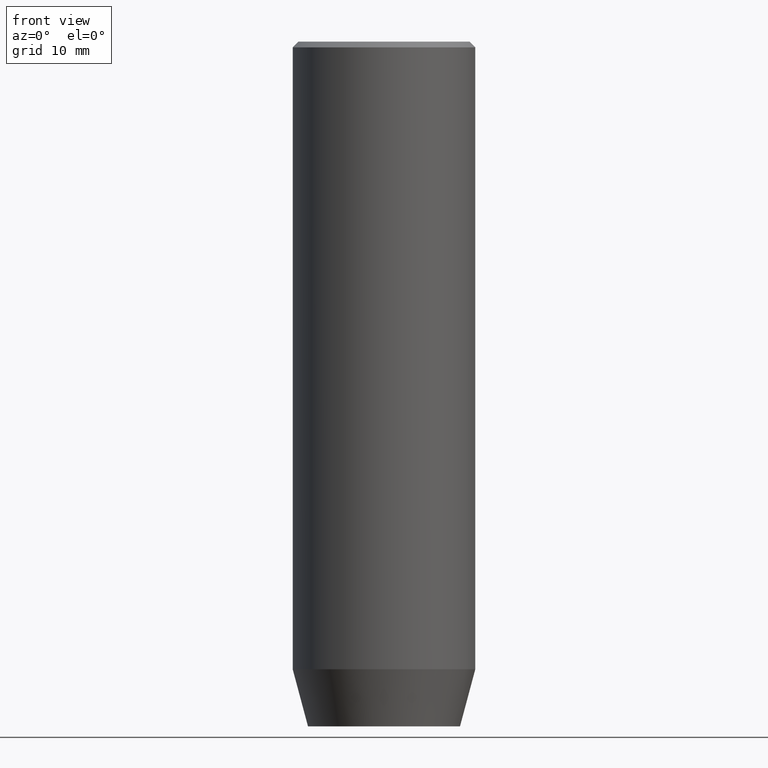
[diagram: clean part render]
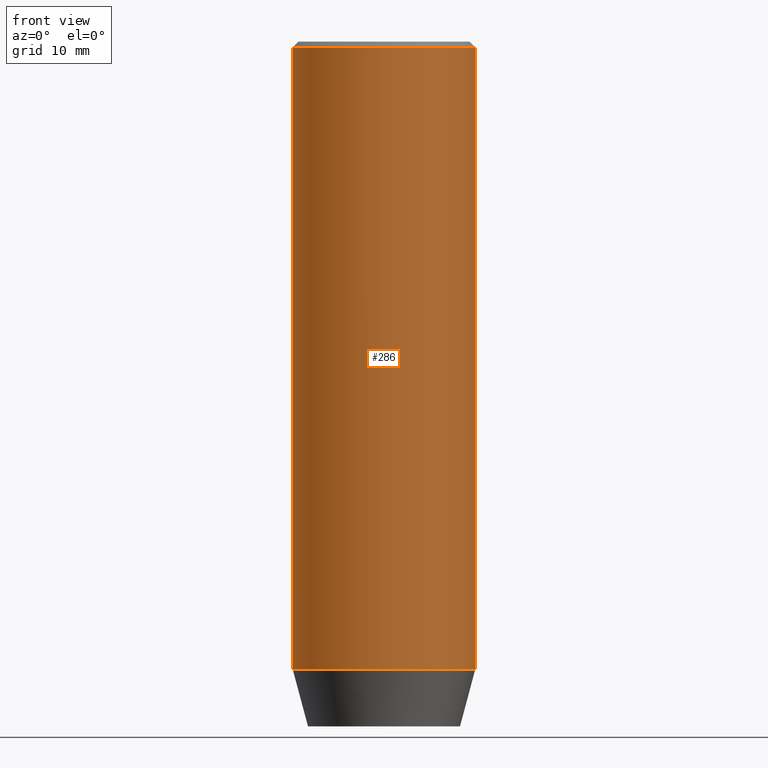
[diagram: same view with one face highlighted and labeled with its STEP entity id]
A machine part, front view. The second image highlights one B-rep face of the part: STEP entity #286.
In plain terms, the highlighted cylindrical surface (partial cylindrical patch) has radius 8 mm, axis along (-0, -0, 1).
Its self-contained STEP definition (entity closure, byte-faithful):
#21 = EDGE_CURVE ( 'NONE', #264, #63, #364, .T. ) ;
#58 = EDGE_CURVE ( 'NONE', #139, #264, #296, .T. ) ;
#63 = VERTEX_POINT ( 'NONE', #337 ) ;
#86 = CARTESIAN_POINT ( 'NONE',  ( -8.000000000000000000, 9.797174393178825657E-16, 0.000000000000000000 ) ) ;
#91 = DIRECTION ( 'NONE',  ( -0.000000000000000000, -0.000000000000000000, 1.000000000000000000 ) ) ;
#120 = ORIENTED_EDGE ( 'NONE', *, *, #21, .T. ) ;
#139 = VERTEX_POINT ( 'NONE', #397 ) ;
#156 = ORIENTED_EDGE ( 'NONE', *, *, #58, .T. ) ;
#180 = EDGE_LOOP ( 'NONE', ( #287, #470, #156, #120 ) ) ;
#209 = DIRECTION ( 'NONE',  ( 1.000000000000000000, 0.000000000000000000, 0.000000000000000000 ) ) ;
#220 = DIRECTION ( 'NONE',  ( 1.000000000000000000, 0.000000000000000000, 0.000000000000000000 ) ) ;
#221 = AXIS2_PLACEMENT_3D ( 'NONE', #436, #385, #209 ) ;
#251 = CARTESIAN_POINT ( 'NONE',  ( -8.000000000000000000, 9.797174393178825657E-16, -55.00000000000000000 ) ) ;
#263 = DIRECTION ( 'NONE',  ( -0.000000000000000000, -0.000000000000000000, 1.000000000000000000 ) ) ;
#264 = VERTEX_POINT ( 'NONE', #438 ) ;
#282 = CARTESIAN_POINT ( 'NONE',  ( 0.000000000000000000, 0.000000000000000000, -55.00000000000000000 ) ) ;
#286 = ADVANCED_FACE ( 'NONE', ( #483 ), #395, .T. ) ;
#287 = ORIENTED_EDGE ( 'NONE', *, *, #502, .F. ) ;
#296 = LINE ( 'NONE', #466, #443 ) ;
#317 = LINE ( 'NONE', #86, #319 ) ;
#319 = VECTOR ( 'NONE', #409, 1000.000000000000000 ) ;
#337 = CARTESIAN_POINT ( 'NONE',  ( -8.000000000000000000, 9.797174393178825657E-16, -0.4999999999999866773 ) ) ;
#364 = CIRCLE ( 'NONE', #221, 8.000000000000000000 ) ;
#385 = DIRECTION ( 'NONE',  ( 0.000000000000000000, 0.000000000000000000, -1.000000000000000000 ) ) ;
#386 = CIRCLE ( 'NONE', #405, 8.000000000000000000 ) ;
#395 = CYLINDRICAL_SURFACE ( 'NONE', #549, 8.000000000000000000 ) ;
#397 = CARTESIAN_POINT ( 'NONE',  ( 8.000000000000000000, 0.000000000000000000, -55.00000000000000000 ) ) ;
#405 = AXIS2_PLACEMENT_3D ( 'NONE', #282, #91, #451 ) ;
#409 = DIRECTION ( 'NONE',  ( -0.000000000000000000, -0.000000000000000000, 1.000000000000000000 ) ) ;
#411 = VERTEX_POINT ( 'NONE', #251 ) ;
#424 = DIRECTION ( 'NONE',  ( -0.000000000000000000, -0.000000000000000000, 1.000000000000000000 ) ) ;
#436 = CARTESIAN_POINT ( 'NONE',  ( 0.000000000000000000, 0.000000000000000000, -0.4999999999999866773 ) ) ;
#438 = CARTESIAN_POINT ( 'NONE',  ( 8.000000000000000000, 0.000000000000000000, -0.4999999999999866773 ) ) ;
#443 = VECTOR ( 'NONE', #424, 1000.000000000000000 ) ;
#451 = DIRECTION ( 'NONE',  ( 1.000000000000000000, 0.000000000000000000, 0.000000000000000000 ) ) ;
#466 = CARTESIAN_POINT ( 'NONE',  ( 8.000000000000000000, 0.000000000000000000, 0.000000000000000000 ) ) ;
#470 = ORIENTED_EDGE ( 'NONE', *, *, #571, .T. ) ;
#483 = FACE_OUTER_BOUND ( 'NONE', #180, .T. ) ;
#502 = EDGE_CURVE ( 'NONE', #411, #63, #317, .T. ) ;
#549 = AXIS2_PLACEMENT_3D ( 'NONE', #578, #263, #220 ) ;
#571 = EDGE_CURVE ( 'NONE', #411, #139, #386, .T. ) ;
#578 = CARTESIAN_POINT ( 'NONE',  ( 0.000000000000000000, 0.000000000000000000, 0.000000000000000000 ) ) ;